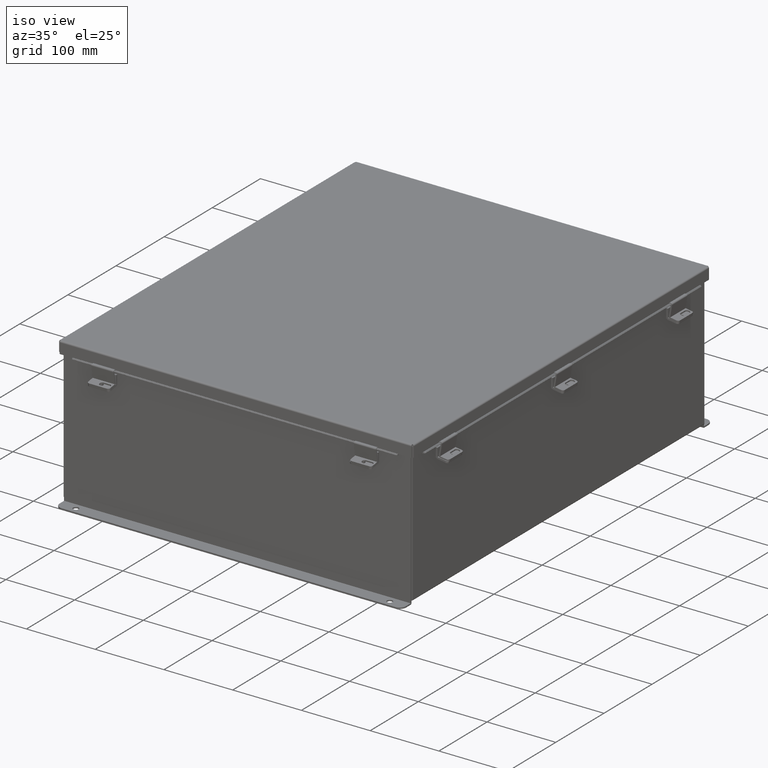
[diagram: clean part render]
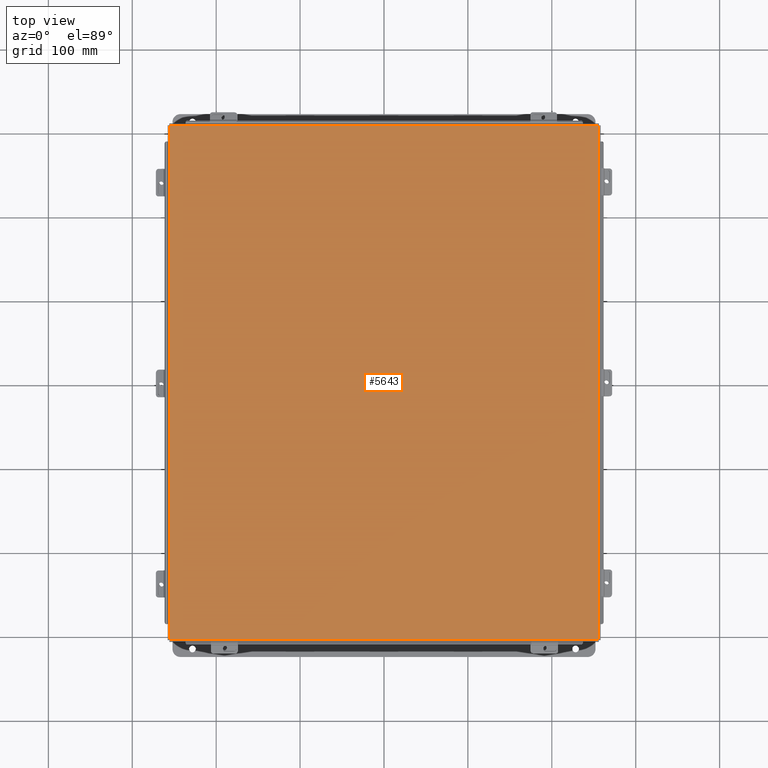
[diagram: tour spotlight — one face highlighted and labeled with its STEP entity id]
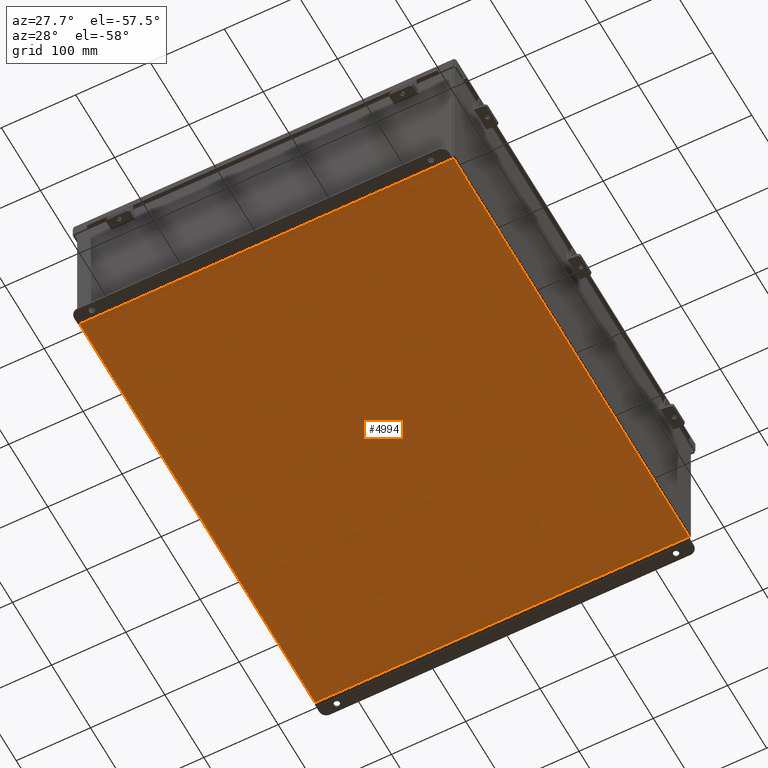
[diagram: tour spotlight — one face highlighted and labeled with its STEP entity id]
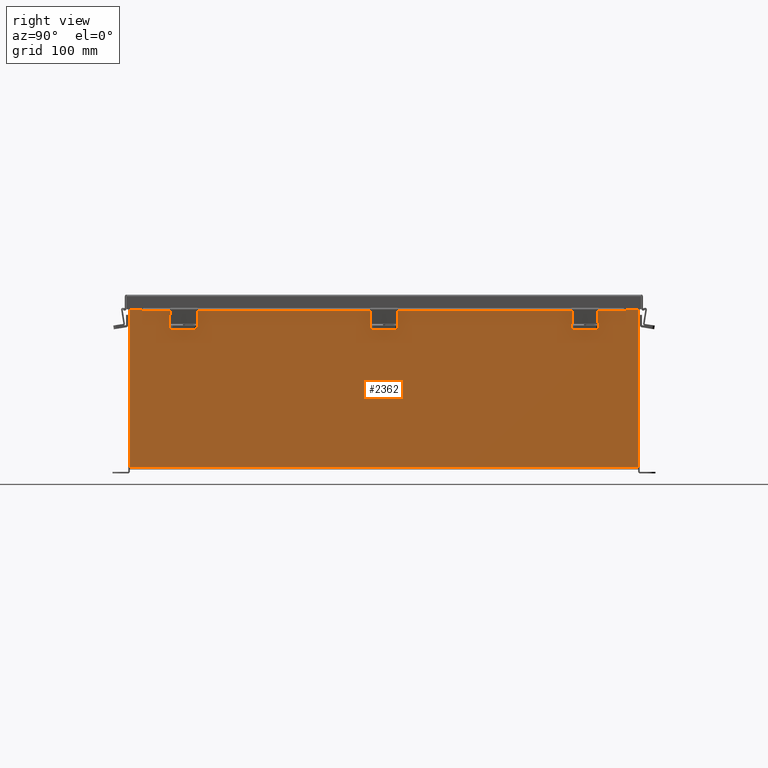
[diagram: tour spotlight — one face highlighted and labeled with its STEP entity id]
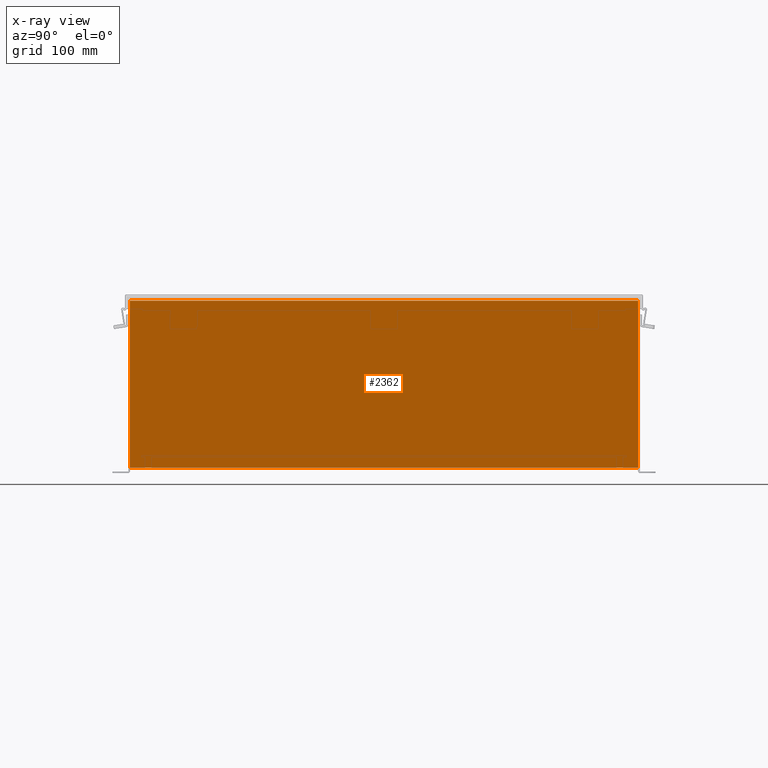
[diagram: x-ray of the same camera — body ghosted, this tour face saturated]
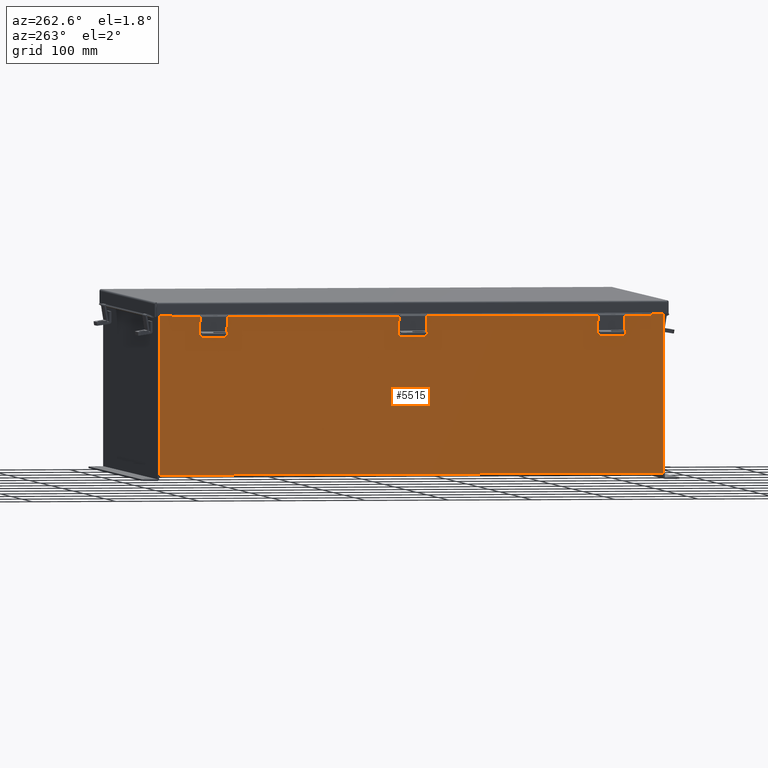
[diagram: tour spotlight — one face highlighted and labeled with its STEP entity id]
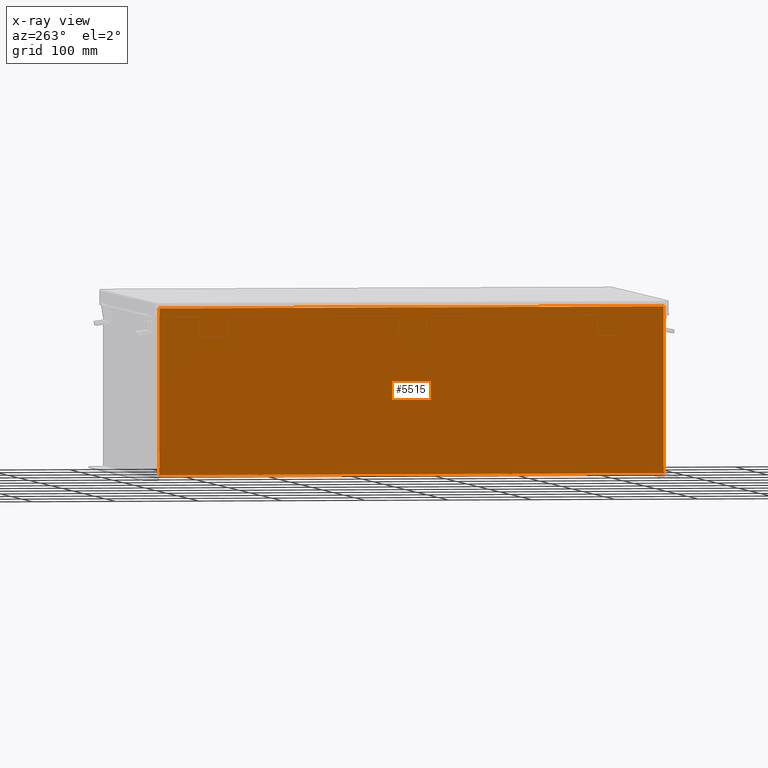
[diagram: x-ray of the same camera — body ghosted, this tour face saturated]
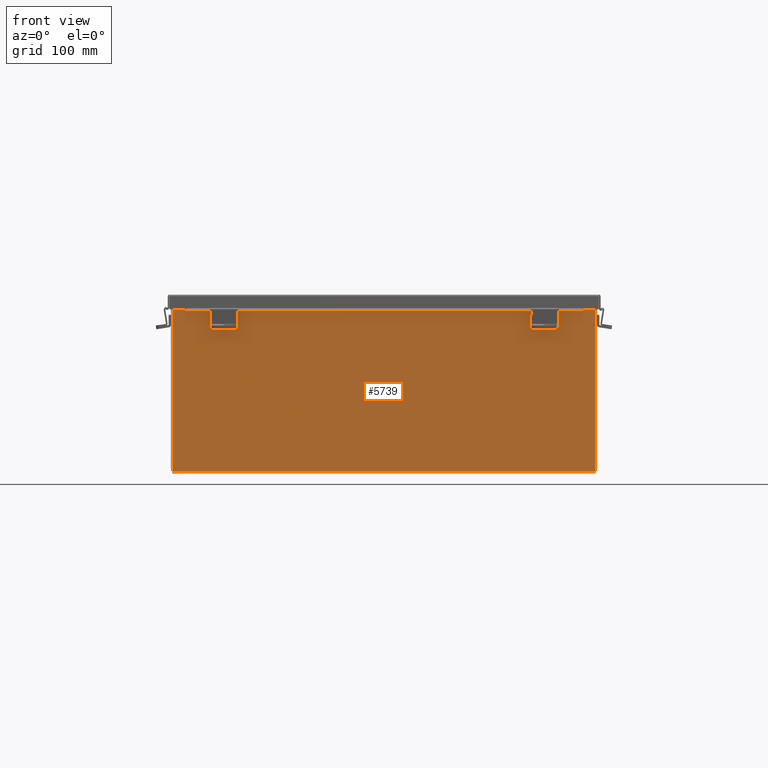
[diagram: tour spotlight — one face highlighted and labeled with its STEP entity id]
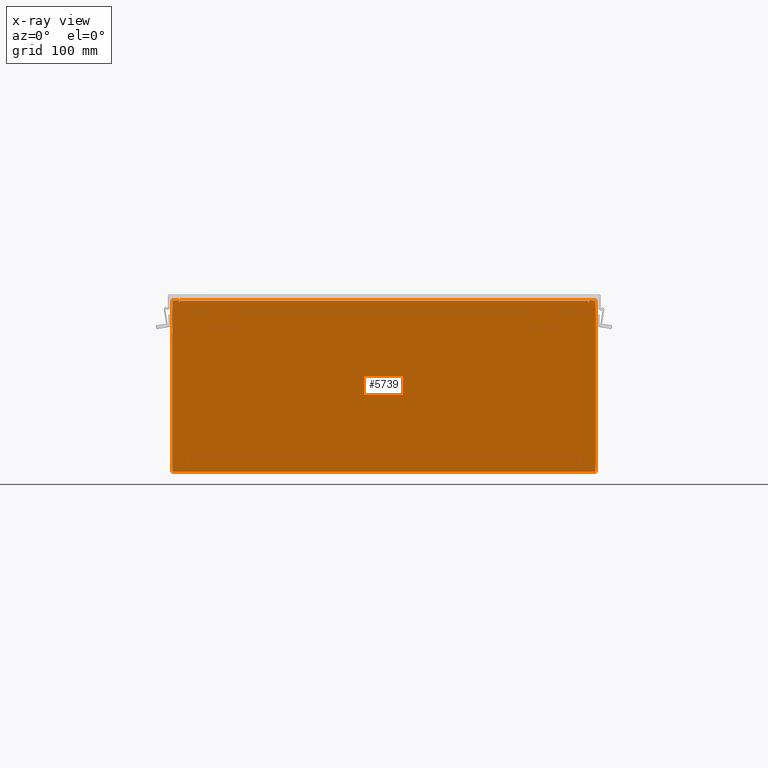
[diagram: x-ray of the same camera — body ghosted, this tour face saturated]
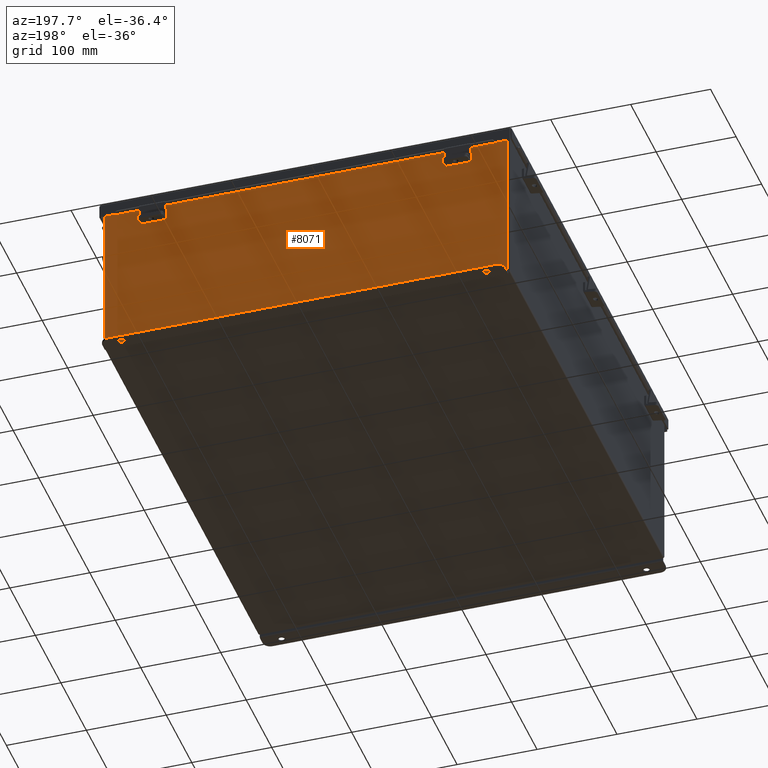
[diagram: tour spotlight — one face highlighted and labeled with its STEP entity id]
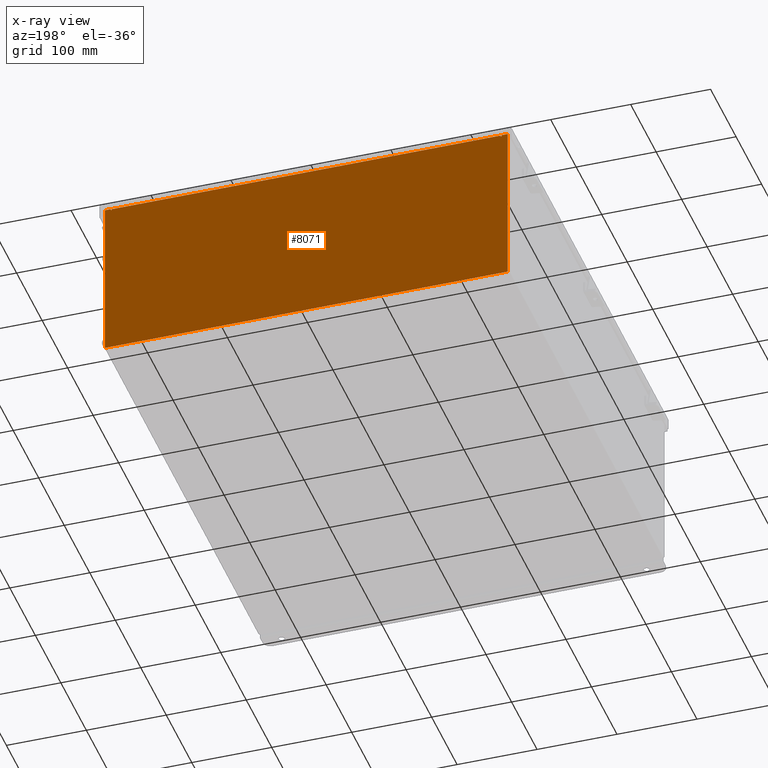
[diagram: x-ray of the same camera — body ghosted, this tour face saturated]
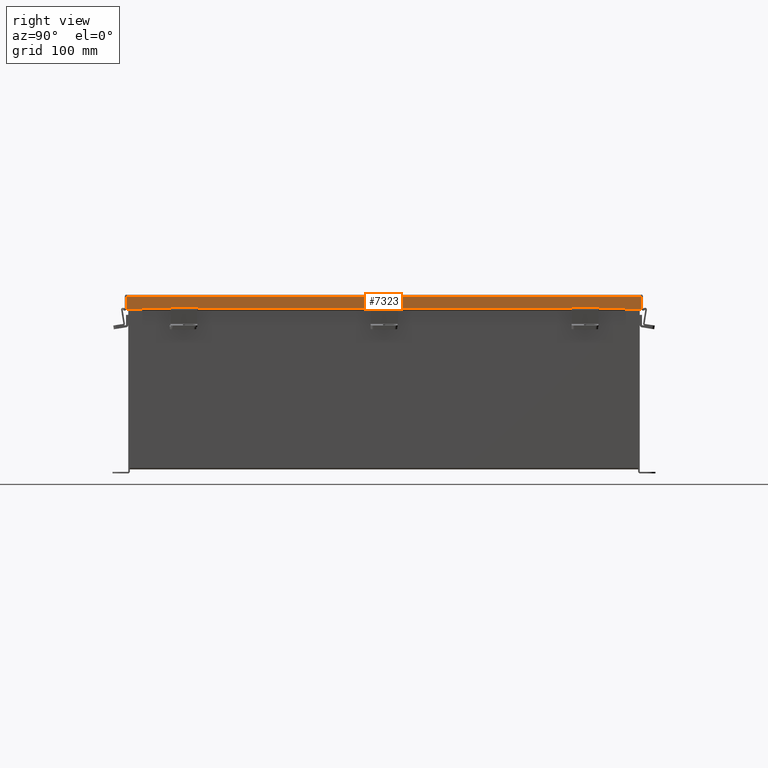
[diagram: tour spotlight — one face highlighted and labeled with its STEP entity id]
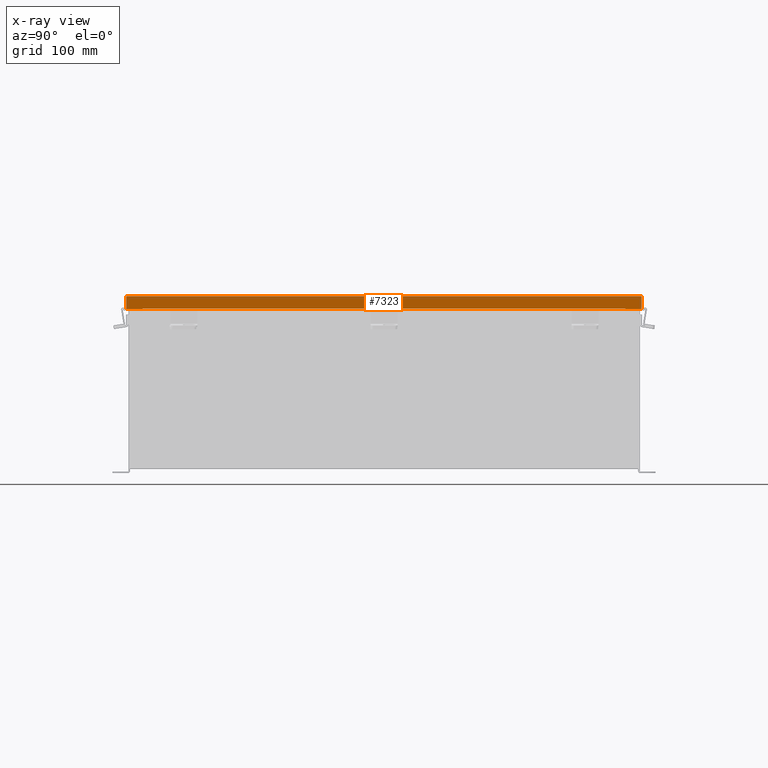
[diagram: x-ray of the same camera — body ghosted, this tour face saturated]
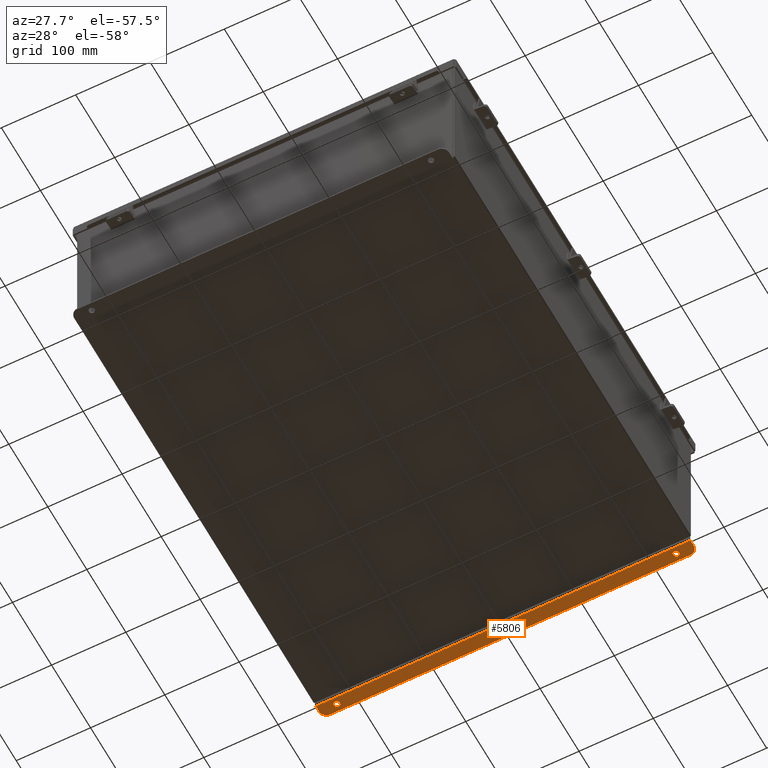
[diagram: tour spotlight — one face highlighted and labeled with its STEP entity id]
A machine part: a face-by-face anatomy tour. The part has 732 B-rep faces; the first image is the clean iso view, then the 8 largest visible faces are spotlighted one at a time (largest first), each with its STEP entity span.

Face 1 — top view, entity #5643. In plain terms, the highlighted planar face has unit normal (-0, -0, 1).
Definition (entity closure, byte-faithful):
#296 = CARTESIAN_POINT ( 'NONE',  ( -10.06855000000003200, 12.06855000000000000, -0.07470000000000015500 ) ) ;
#363 = LINE ( 'NONE', #7210, #4476 ) ;
#521 = ORIENTED_EDGE ( 'NONE', *, *, #8429, .T. ) ;
#1362 = VERTEX_POINT ( 'NONE', #296 ) ;
#1649 = ORIENTED_EDGE ( 'NONE', *, *, #1918, .T. ) ;
#1918 = EDGE_CURVE ( 'NONE', #6559, #6096, #3788, .T. ) ;
#1963 = DIRECTION ( 'NONE',  ( 1.000000000000000000, 3.215975411700707400E-030, -0.0000000000000000000 ) ) ;
#2174 = VECTOR ( 'NONE', #7280, 39.37007874015748100 ) ;
#2217 = EDGE_LOOP ( 'NONE', ( #6118, #5214, #1649, #521 ) ) ;
#2398 = PLANE ( 'NONE',  #3953 ) ;
#2649 = CARTESIAN_POINT ( 'NONE',  ( -10.06855000000003200, -12.07447893218813200, -0.07470000000000015500 ) ) ;
#3182 = DIRECTION ( 'NONE',  ( 5.938065620492508100E-059, -1.846427556282924300E-029, -1.000000000000000000 ) ) ;
#3444 = CARTESIAN_POINT ( 'NONE',  ( 10.06855000000003600, 12.06854999999999700, -0.07470000000000015500 ) ) ;
#3788 = LINE ( 'NONE', #5668, #9442 ) ;
#3953 = AXIS2_PLACEMENT_3D ( 'NONE', #7784, #3182, #8572 ) ;
#4295 = CARTESIAN_POINT ( 'NONE',  ( -10.07447893218816600, 12.06855000000000000, -0.07470000000000015500 ) ) ;
#4363 = EDGE_CURVE ( 'NONE', #6179, #6559, #363, .T. ) ;
#4476 = VECTOR ( 'NONE', #9670, 39.37007874015748100 ) ;
#4843 = CARTESIAN_POINT ( 'NONE',  ( -10.06855000000003200, -12.06855000000000000, -0.07470000000000015500 ) ) ;
#5214 = ORIENTED_EDGE ( 'NONE', *, *, #4363, .T. ) ;
#5643 = ADVANCED_FACE ( 'NONE', ( #6133 ), #2398, .T. ) ;
#5668 = CARTESIAN_POINT ( 'NONE',  ( 10.07447893218817100, -12.06854999999999700, -0.07469999999999797600 ) ) ;
#6022 = LINE ( 'NONE', #2649, #2174 ) ;
#6096 = VERTEX_POINT ( 'NONE', #4843 ) ;
#6118 = ORIENTED_EDGE ( 'NONE', *, *, #6793, .T. ) ;
#6133 = FACE_OUTER_BOUND ( 'NONE', #2217, .T. ) ;
#6179 = VERTEX_POINT ( 'NONE', #3444 ) ;
#6559 = VERTEX_POINT ( 'NONE', #7694 ) ;
#6793 = EDGE_CURVE ( 'NONE', #1362, #6179, #7138, .T. ) ;
#6898 = VECTOR ( 'NONE', #1963, 39.37007874015748100 ) ;
#7138 = LINE ( 'NONE', #4295, #6898 ) ;
#7210 = CARTESIAN_POINT ( 'NONE',  ( 10.06855000000003600, 12.07447893218813200, -0.07470000000000015500 ) ) ;
#7214 = DIRECTION ( 'NONE',  ( -1.000000000000000000, -3.208594708412919900E-030, -2.462603359672870600E-016 ) ) ;
#7280 = DIRECTION ( 'NONE',  ( 3.166671605124525800E-030, 1.000000000000000000, 1.853823127269377700E-029 ) ) ;
#7694 = CARTESIAN_POINT ( 'NONE',  ( 10.06855000000003600, -12.06854999999999700, -0.07469999999999797600 ) ) ;
#7784 = CARTESIAN_POINT ( 'NONE',  ( -8.537024980200822600E-018, 0.0000000000000000000, -0.07470000000000015500 ) ) ;
#8429 = EDGE_CURVE ( 'NONE', #6096, #1362, #6022, .T. ) ;
#8572 = DIRECTION ( 'NONE',  ( -1.000000000000000000, -3.215975411700707400E-030, 0.0000000000000000000 ) ) ;
#9442 = VECTOR ( 'NONE', #7214, 39.37007874015748100 ) ;
#9670 = DIRECTION ( 'NONE',  ( -3.166671605124525800E-030, -1.000000000000000000, -1.853823127269377700E-029 ) ) ;

Face 2 — auxiliary view, entity #4994. In plain terms, the highlighted planar face has unit normal (0, 0, -1).
Definition (entity closure, byte-faithful):
#15 = VERTEX_POINT ( 'NONE', #8042 ) ;
#450 = ORIENTED_EDGE ( 'NONE', *, *, #8259, .F. ) ;
#788 = VECTOR ( 'NONE', #5796, 39.37007874015748100 ) ;
#987 = VERTEX_POINT ( 'NONE', #4412 ) ;
#1338 = VECTOR ( 'NONE', #7037, 39.37007874015748100 ) ;
#1757 = AXIS2_PLACEMENT_3D ( 'NONE', #3075, #9236, #4628 ) ;
#1993 = DIRECTION ( 'NONE',  ( 1.000000000000000000, 0.0000000000000000000, 0.0000000000000000000 ) ) ;
#2241 = EDGE_CURVE ( 'NONE', #5529, #987, #3329, .T. ) ;
#2308 = CARTESIAN_POINT ( 'NONE',  ( 9.912300000000000100, 11.92529999999999300, -0.07469999999999994700 ) ) ;
#2716 = CARTESIAN_POINT ( 'NONE',  ( 9.912300000000000100, 11.92529999999999600, -0.07469999999999994700 ) ) ;
#3047 = ORIENTED_EDGE ( 'NONE', *, *, #4186, .F. ) ;
#3075 = CARTESIAN_POINT ( 'NONE',  ( 0.0000000000000000000, 0.0000000000000000000, -0.07470000000000000300 ) ) ;
#3329 = LINE ( 'NONE', #2716, #788 ) ;
#3357 = LINE ( 'NONE', #8741, #4931 ) ;
#3377 = LINE ( 'NONE', #7359, #4948 ) ;
#3503 = FACE_OUTER_BOUND ( 'NONE', #5559, .T. ) ;
#4186 = EDGE_CURVE ( 'NONE', #5529, #4625, #5417, .T. ) ;
#4412 = CARTESIAN_POINT ( 'NONE',  ( 9.912300000000000100, -11.92530000000000000, -0.07470000000000000300 ) ) ;
#4417 = ORIENTED_EDGE ( 'NONE', *, *, #2241, .T. ) ;
#4465 = PLANE ( 'NONE',  #1757 ) ;
#4625 = VERTEX_POINT ( 'NONE', #8462 ) ;
#4628 = DIRECTION ( 'NONE',  ( -1.000000000000000000, 0.0000000000000000000, -0.0000000000000000000 ) ) ;
#4931 = VECTOR ( 'NONE', #6446, 39.37007874015748100 ) ;
#4948 = VECTOR ( 'NONE', #1993, 39.37007874015748100 ) ;
#4994 = ADVANCED_FACE ( 'NONE', ( #3503 ), #4465, .T. ) ;
#5417 = LINE ( 'NONE', #9345, #1338 ) ;
#5529 = VERTEX_POINT ( 'NONE', #2308 ) ;
#5559 = EDGE_LOOP ( 'NONE', ( #3047, #4417, #450, #9801 ) ) ;
#5794 = EDGE_CURVE ( 'NONE', #15, #4625, #3357, .T. ) ;
#5796 = DIRECTION ( 'NONE',  ( -0.0000000000000000000, -1.000000000000000000, -0.0000000000000000000 ) ) ;
#6446 = DIRECTION ( 'NONE',  ( -0.0000000000000000000, 1.000000000000000000, -0.0000000000000000000 ) ) ;
#7037 = DIRECTION ( 'NONE',  ( -1.000000000000000000, -0.0000000000000000000, -0.0000000000000000000 ) ) ;
#7359 = CARTESIAN_POINT ( 'NONE',  ( -10.00000000000000000, -11.92530000000000000, -0.07470000000000000300 ) ) ;
#8042 = CARTESIAN_POINT ( 'NONE',  ( -9.912300000000000100, -11.92529999999999600, -0.07469999999999994700 ) ) ;
#8259 = EDGE_CURVE ( 'NONE', #15, #987, #3377, .T. ) ;
#8462 = CARTESIAN_POINT ( 'NONE',  ( -9.912300000000000100, 11.92529999999999600, -0.07470000000000000300 ) ) ;
#8741 = CARTESIAN_POINT ( 'NONE',  ( -9.912300000000000100, -11.92530000000000000, -0.07469999999999994700 ) ) ;
#9236 = DIRECTION ( 'NONE',  ( 0.0000000000000000000, 0.0000000000000000000, -1.000000000000000000 ) ) ;
#9345 = CARTESIAN_POINT ( 'NONE',  ( -10.00000000000000000, 11.92529999999999600, -0.07470000000000000300 ) ) ;
#9801 = ORIENTED_EDGE ( 'NONE', *, *, #5794, .T. ) ;

Face 3 — right view, entity #2362. An x-ray twin of the same camera follows (body ghosted, this face saturated) — the face is partly hidden behind the body. In plain terms, the highlighted planar face has unit normal (-1, 0, 0).
Definition (entity closure, byte-faithful):
#66 = FACE_OUTER_BOUND ( 'NONE', #4400, .T. ) ;
#180 = AXIS2_PLACEMENT_3D ( 'NONE', #9726, #5139, #501 ) ;
#355 = EDGE_CURVE ( 'NONE', #8005, #9562, #9852, .T. ) ;
#452 = DIRECTION ( 'NONE',  ( -0.0000000000000000000, -1.000000000000000000, -0.0000000000000000000 ) ) ;
#501 = DIRECTION ( 'NONE',  ( 3.618986973493534200E-015, 0.0000000000000000000, 1.000000000000000000 ) ) ;
#529 = LINE ( 'NONE', #6082, #4407 ) ;
#682 = DIRECTION ( 'NONE',  ( -0.0000000000000000000, -1.000000000000000000, -0.0000000000000000000 ) ) ;
#924 = ORIENTED_EDGE ( 'NONE', *, *, #8519, .F. ) ;
#1208 = VECTOR ( 'NONE', #452, 39.37007874015748100 ) ;
#1298 = VERTEX_POINT ( 'NONE', #5653 ) ;
#1436 = CARTESIAN_POINT ( 'NONE',  ( 10.00000000000000000, -11.92530000000000000, -3.645309666545751000E-014 ) ) ;
#1466 = EDGE_CURVE ( 'NONE', #9562, #6834, #529, .T. ) ;
#2224 = CARTESIAN_POINT ( 'NONE',  ( 10.00000000000002800, -11.92530000000000000, 7.837599999999999200 ) ) ;
#2249 = CARTESIAN_POINT ( 'NONE',  ( 10.00000000000000000, 11.92529999999999600, -3.313219394815939000E-014 ) ) ;
#2362 = ADVANCED_FACE ( 'NONE', ( #66 ), #9762, .F. ) ;
#3474 = ORIENTED_EDGE ( 'NONE', *, *, #1466, .T. ) ;
#3700 = VECTOR ( 'NONE', #5305, 39.37007874015748100 ) ;
#4028 = CARTESIAN_POINT ( 'NONE',  ( 10.00000000000000000, 11.92529999999999300, 0.01299999999999982600 ) ) ;
#4400 = EDGE_LOOP ( 'NONE', ( #3474, #8955, #924, #9856 ) ) ;
#4407 = VECTOR ( 'NONE', #682, 39.37007874015748100 ) ;
#5139 = DIRECTION ( 'NONE',  ( -1.000000000000000000, 0.0000000000000000000, 3.618986973493534200E-015 ) ) ;
#5262 = CARTESIAN_POINT ( 'NONE',  ( 10.00000000000002700, 11.92529999999998900, 7.837599999999999200 ) ) ;
#5305 = DIRECTION ( 'NONE',  ( 3.618986973493534200E-015, -2.783836133456565100E-016, 1.000000000000000000 ) ) ;
#5542 = LINE ( 'NONE', #1436, #6680 ) ;
#5653 = CARTESIAN_POINT ( 'NONE',  ( 10.00000000000000000, -11.92530000000000000, 0.01299999999999984300 ) ) ;
#6082 = CARTESIAN_POINT ( 'NONE',  ( 10.00000000000002700, 11.92529999999999300, 7.837599999999999200 ) ) ;
#6680 = VECTOR ( 'NONE', #9152, 39.37007874015748100 ) ;
#6834 = VERTEX_POINT ( 'NONE', #2224 ) ;
#7353 = LINE ( 'NONE', #9696, #1208 ) ;
#7826 = EDGE_CURVE ( 'NONE', #6834, #1298, #5542, .T. ) ;
#8005 = VERTEX_POINT ( 'NONE', #4028 ) ;
#8519 = EDGE_CURVE ( 'NONE', #8005, #1298, #7353, .T. ) ;
#8955 = ORIENTED_EDGE ( 'NONE', *, *, #7826, .T. ) ;
#9152 = DIRECTION ( 'NONE',  ( -3.618986973493534200E-015, 0.0000000000000000000, -1.000000000000000000 ) ) ;
#9562 = VERTEX_POINT ( 'NONE', #5262 ) ;
#9696 = CARTESIAN_POINT ( 'NONE',  ( 10.00000000000000000, -11.92530000000000000, 0.01299999999999982600 ) ) ;
#9726 = CARTESIAN_POINT ( 'NONE',  ( 10.00000000000000000, 0.0000000000000000000, -3.645309666545751000E-014 ) ) ;
#9762 = PLANE ( 'NONE',  #180 ) ;
#9852 = LINE ( 'NONE', #2249, #3700 ) ;
#9856 = ORIENTED_EDGE ( 'NONE', *, *, #355, .T. ) ;

Face 4 — auxiliary view, entity #5515. An x-ray twin of the same camera follows (body ghosted, this face saturated) — the face is partly hidden behind the body. In plain terms, the highlighted planar face has unit normal (1, 0, 0).
Definition (entity closure, byte-faithful):
#140 = EDGE_CURVE ( 'NONE', #5059, #9708, #3320, .T. ) ;
#375 = DIRECTION ( 'NONE',  ( -3.618986973493534200E-015, 2.783836133456565100E-016, 1.000000000000000000 ) ) ;
#445 = ORIENTED_EDGE ( 'NONE', *, *, #7347, .T. ) ;
#557 = DIRECTION ( 'NONE',  ( 3.618986973493534200E-015, 0.0000000000000000000, -1.000000000000000000 ) ) ;
#875 = VERTEX_POINT ( 'NONE', #1178 ) ;
#1178 = CARTESIAN_POINT ( 'NONE',  ( -10.00000000000000000, 11.92529999999999600, 0.01299999999999984300 ) ) ;
#1392 = VECTOR ( 'NONE', #375, 39.37007874015748100 ) ;
#1498 = PLANE ( 'NONE',  #9854 ) ;
#1727 = VECTOR ( 'NONE', #8012, 39.37007874015748100 ) ;
#1853 = CARTESIAN_POINT ( 'NONE',  ( -10.00000000000000000, 11.92529999999999600, 0.01299999999999982600 ) ) ;
#2277 = CARTESIAN_POINT ( 'NONE',  ( -10.00000000000000000, 0.0000000000000000000, -3.645309666545751000E-014 ) ) ;
#2365 = CARTESIAN_POINT ( 'NONE',  ( -10.00000000000003000, -11.92529999999999500, 7.837599999999999200 ) ) ;
#2820 = VECTOR ( 'NONE', #557, 39.37007874015748100 ) ;
#2926 = CARTESIAN_POINT ( 'NONE',  ( -10.00000000000002800, 11.92529999999999600, 7.837599999999999200 ) ) ;
#2974 = EDGE_CURVE ( 'NONE', #5538, #5059, #7536, .T. ) ;
#3053 = DIRECTION ( 'NONE',  ( 1.000000000000000000, 0.0000000000000000000, 3.618986973493534200E-015 ) ) ;
#3320 = LINE ( 'NONE', #6419, #7168 ) ;
#4522 = DIRECTION ( 'NONE',  ( 0.0000000000000000000, 1.000000000000000000, 0.0000000000000000000 ) ) ;
#5059 = VERTEX_POINT ( 'NONE', #2365 ) ;
#5515 = ADVANCED_FACE ( 'NONE', ( #5774 ), #1498, .F. ) ;
#5538 = VERTEX_POINT ( 'NONE', #7689 ) ;
#5774 = FACE_OUTER_BOUND ( 'NONE', #6359, .T. ) ;
#5835 = LINE ( 'NONE', #1853, #1727 ) ;
#6359 = EDGE_LOOP ( 'NONE', ( #9499, #445, #7898, #7849 ) ) ;
#6419 = CARTESIAN_POINT ( 'NONE',  ( -10.00000000000003000, -11.92529999999999600, 7.837599999999999200 ) ) ;
#6682 = EDGE_CURVE ( 'NONE', #5538, #875, #5835, .T. ) ;
#7168 = VECTOR ( 'NONE', #4522, 39.37007874015748100 ) ;
#7279 = CARTESIAN_POINT ( 'NONE',  ( -10.00000000000000000, -11.92530000000000000, -3.313219394815939000E-014 ) ) ;
#7347 = EDGE_CURVE ( 'NONE', #9708, #875, #8966, .T. ) ;
#7536 = LINE ( 'NONE', #7279, #1392 ) ;
#7689 = CARTESIAN_POINT ( 'NONE',  ( -10.00000000000000000, -11.92529999999999600, 0.01299999999999982600 ) ) ;
#7849 = ORIENTED_EDGE ( 'NONE', *, *, #2974, .T. ) ;
#7898 = ORIENTED_EDGE ( 'NONE', *, *, #6682, .F. ) ;
#8012 = DIRECTION ( 'NONE',  ( -0.0000000000000000000, 1.000000000000000000, -0.0000000000000000000 ) ) ;
#8447 = DIRECTION ( 'NONE',  ( 3.618986973493534200E-015, 0.0000000000000000000, -1.000000000000000000 ) ) ;
#8966 = LINE ( 'NONE', #9805, #2820 ) ;
#9499 = ORIENTED_EDGE ( 'NONE', *, *, #140, .T. ) ;
#9708 = VERTEX_POINT ( 'NONE', #2926 ) ;
#9805 = CARTESIAN_POINT ( 'NONE',  ( -10.00000000000000000, 11.92529999999999600, -3.645309666545751000E-014 ) ) ;
#9854 = AXIS2_PLACEMENT_3D ( 'NONE', #2277, #3053, #8447 ) ;

Face 5 — front view, entity #5739. An x-ray twin of the same camera follows (body ghosted, this face saturated) — the face is partly hidden behind the body. In plain terms, the highlighted planar face has unit normal (-0, 1, -0).
Definition (entity closure, byte-faithful):
#50 = VECTOR ( 'NONE', #2829, 39.37007874015748100 ) ;
#76 = CARTESIAN_POINT ( 'NONE',  ( -9.600974999999998300, -1.748382715945128500E-014, 3.874949999999997900 ) ) ;
#207 = VECTOR ( 'NONE', #6328, 39.37007874015748100 ) ;
#235 = CARTESIAN_POINT ( 'NONE',  ( 9.925300000000000000, 0.0000000000000000000, 3.925300000000000500 ) ) ;
#379 = VERTEX_POINT ( 'NONE', #9969 ) ;
#468 = LINE ( 'NONE', #5531, #207 ) ;
#627 = EDGE_CURVE ( 'NONE', #7740, #8381, #4044, .T. ) ;
#723 = CARTESIAN_POINT ( 'NONE',  ( -9.925299999999998200, -1.748382715945128500E-014, 3.925299999999999100 ) ) ;
#777 = ORIENTED_EDGE ( 'NONE', *, *, #3344, .T. ) ;
#844 = DIRECTION ( 'NONE',  ( 0.0000000000000000000, 0.0000000000000000000, -1.000000000000000000 ) ) ;
#928 = EDGE_CURVE ( 'NONE', #2144, #5791, #1880, .T. ) ;
#941 = PLANE ( 'NONE',  #7566 ) ;
#1094 = VERTEX_POINT ( 'NONE', #9505 ) ;
#1357 = VECTOR ( 'NONE', #4146, 39.37007874015748100 ) ;
#1563 = LINE ( 'NONE', #3907, #5409 ) ;
#1630 = VERTEX_POINT ( 'NONE', #6238 ) ;
#1645 = CARTESIAN_POINT ( 'NONE',  ( -9.619649999999998300, -1.748382715945128500E-014, 3.925300000000000500 ) ) ;
#1846 = LINE ( 'NONE', #7975, #1357 ) ;
#1880 = LINE ( 'NONE', #7427, #50 ) ;
#1991 = CARTESIAN_POINT ( 'NONE',  ( 9.925299999999998200, 1.748382715945128500E-014, -4.099299999999995100 ) ) ;
#2012 = DIRECTION ( 'NONE',  ( -4.340572780399863600E-014, 0.0000000000000000000, -1.000000000000000000 ) ) ;
#2144 = VERTEX_POINT ( 'NONE', #8023 ) ;
#2203 = ORIENTED_EDGE ( 'NONE', *, *, #4751, .F. ) ;
#2235 = VERTEX_POINT ( 'NONE', #8880 ) ;
#2240 = VECTOR ( 'NONE', #3392, 39.37007874015748100 ) ;
#2305 = EDGE_CURVE ( 'NONE', #2144, #2235, #8526, .T. ) ;
#2317 = DIRECTION ( 'NONE',  ( 0.0000000000000000000, 0.0000000000000000000, 1.000000000000000000 ) ) ;
#2443 = VECTOR ( 'NONE', #8789, 39.37007874015748100 ) ;
#2467 = AXIS2_PLACEMENT_3D ( 'NONE', #8587, #3960, #9354 ) ;
#2534 = DIRECTION ( 'NONE',  ( 0.0000000000000000000, 0.0000000000000000000, -1.000000000000000000 ) ) ;
#2622 = CARTESIAN_POINT ( 'NONE',  ( -9.582299999999998300, -1.311287036958846300E-014, 3.912299999999997900 ) ) ;
#2764 = ORIENTED_EDGE ( 'NONE', *, *, #4118, .F. ) ;
#2829 = DIRECTION ( 'NONE',  ( 1.000000000000000000, 4.910036603141682400E-031, 0.0000000000000000000 ) ) ;
#3344 = EDGE_CURVE ( 'NONE', #379, #8915, #7154, .T. ) ;
#3392 = DIRECTION ( 'NONE',  ( 0.0000000000000000000, 0.0000000000000000000, -1.000000000000000000 ) ) ;
#3539 = CARTESIAN_POINT ( 'NONE',  ( -9.582299999999998300, -1.311287036958846300E-014, 3.912299999999997900 ) ) ;
#3742 = LINE ( 'NONE', #5769, #7581 ) ;
#3833 = ORIENTED_EDGE ( 'NONE', *, *, #627, .F. ) ;
#3907 = CARTESIAN_POINT ( 'NONE',  ( 9.582300000000001800, 0.0000000000000000000, 0.0000000000000000000 ) ) ;
#3960 = DIRECTION ( 'NONE',  ( 4.910036603141682400E-031, 1.000000000000000000, -0.0000000000000000000 ) ) ;
#4044 = LINE ( 'NONE', #7217, #2240 ) ;
#4118 = EDGE_CURVE ( 'NONE', #8381, #1094, #5922, .T. ) ;
#4146 = DIRECTION ( 'NONE',  ( 0.0000000000000000000, 0.0000000000000000000, 1.000000000000000000 ) ) ;
#4286 = ORIENTED_EDGE ( 'NONE', *, *, #4696, .F. ) ;
#4399 = VERTEX_POINT ( 'NONE', #1991 ) ;
#4425 = VECTOR ( 'NONE', #2012, 39.37007874015748100 ) ;
#4470 = ORIENTED_EDGE ( 'NONE', *, *, #8450, .F. ) ;
#4674 = DIRECTION ( 'NONE',  ( 0.0000000000000000000, 0.0000000000000000000, 1.000000000000000000 ) ) ;
#4696 = EDGE_CURVE ( 'NONE', #5482, #1630, #1563, .T. ) ;
#4751 = EDGE_CURVE ( 'NONE', #2235, #5482, #5190, .T. ) ;
#4803 = CARTESIAN_POINT ( 'NONE',  ( -9.925299999999998200, -1.748382715945128500E-014, 3.925299999999999100 ) ) ;
#4851 = ORIENTED_EDGE ( 'NONE', *, *, #2305, .F. ) ;
#5001 = VECTOR ( 'NONE', #2317, 39.37007874015748100 ) ;
#5190 = CIRCLE ( 'NONE', #2467, 0.01867500000000003900 ) ;
#5223 = VERTEX_POINT ( 'NONE', #7916 ) ;
#5409 = VECTOR ( 'NONE', #4674, 39.37007874015748100 ) ;
#5418 = AXIS2_PLACEMENT_3D ( 'NONE', #76, #5456, #844 ) ;
#5456 = DIRECTION ( 'NONE',  ( 4.910036603141682400E-031, 1.000000000000000000, -0.0000000000000000000 ) ) ;
#5482 = VERTEX_POINT ( 'NONE', #9896 ) ;
#5531 = CARTESIAN_POINT ( 'NONE',  ( 9.925300000000000000, 0.0000000000000000000, 3.925300000000000500 ) ) ;
#5739 = ADVANCED_FACE ( 'NONE', ( #9515 ), #941, .F. ) ;
#5769 = CARTESIAN_POINT ( 'NONE',  ( -9.925299999999998200, -2.185478394931410600E-015, -4.099299999999999500 ) ) ;
#5791 = VERTEX_POINT ( 'NONE', #235 ) ;
#5922 = CIRCLE ( 'NONE', #5418, 0.01867500000000003900 ) ;
#6238 = CARTESIAN_POINT ( 'NONE',  ( 9.582300000000001800, 0.0000000000000000000, 3.912299999999997900 ) ) ;
#6328 = DIRECTION ( 'NONE',  ( -2.783836133456566600E-016, 0.0000000000000000000, -1.000000000000000000 ) ) ;
#6444 = CARTESIAN_POINT ( 'NONE',  ( -9.582299999999998300, -1.748382715945128500E-014, 3.874949999999999200 ) ) ;
#6515 = EDGE_CURVE ( 'NONE', #5223, #379, #7273, .T. ) ;
#6612 = CARTESIAN_POINT ( 'NONE',  ( 9.619649999999833100, 0.0000000000000000000, -4.136017862407694300E-013 ) ) ;
#6824 = ORIENTED_EDGE ( 'NONE', *, *, #7131, .T. ) ;
#7131 = EDGE_CURVE ( 'NONE', #7740, #1630, #8599, .T. ) ;
#7139 = DIRECTION ( 'NONE',  ( -4.910036603141682400E-031, -1.000000000000000000, -0.0000000000000000000 ) ) ;
#7154 = LINE ( 'NONE', #4803, #8743 ) ;
#7217 = CARTESIAN_POINT ( 'NONE',  ( -9.582299999999998300, 0.0000000000000000000, 4.370956789862821100E-015 ) ) ;
#7273 = LINE ( 'NONE', #723, #5001 ) ;
#7390 = ORIENTED_EDGE ( 'NONE', *, *, #6515, .T. ) ;
#7427 = CARTESIAN_POINT ( 'NONE',  ( -9.925299999999998200, -1.748382715945128500E-014, 3.925299999999999100 ) ) ;
#7566 = AXIS2_PLACEMENT_3D ( 'NONE', #9445, #7139, #2534 ) ;
#7580 = EDGE_CURVE ( 'NONE', #1094, #8915, #1846, .T. ) ;
#7581 = VECTOR ( 'NONE', #9633, 39.37007874015748100 ) ;
#7740 = VERTEX_POINT ( 'NONE', #3539 ) ;
#7916 = CARTESIAN_POINT ( 'NONE',  ( -9.925299999999996500, -2.185478394931410600E-015, -4.099299999999999500 ) ) ;
#7975 = CARTESIAN_POINT ( 'NONE',  ( -9.619649999999998300, 0.0000000000000000000, 0.0000000000000000000 ) ) ;
#8023 = CARTESIAN_POINT ( 'NONE',  ( 9.619650000000003600, 0.0000000000000000000, 3.925299999999999100 ) ) ;
#8381 = VERTEX_POINT ( 'NONE', #6444 ) ;
#8450 = EDGE_CURVE ( 'NONE', #5223, #4399, #3742, .T. ) ;
#8492 = ORIENTED_EDGE ( 'NONE', *, *, #928, .T. ) ;
#8526 = LINE ( 'NONE', #6612, #4425 ) ;
#8533 = EDGE_LOOP ( 'NONE', ( #8697, #2764, #3833, #6824, #4286, #2203, #4851, #8492, #9438, #4470, #7390, #777 ) ) ;
#8587 = CARTESIAN_POINT ( 'NONE',  ( 9.600975000000000000, 0.0000000000000000000, 3.874949999999997900 ) ) ;
#8599 = LINE ( 'NONE', #2622, #2443 ) ;
#8697 = ORIENTED_EDGE ( 'NONE', *, *, #7580, .F. ) ;
#8743 = VECTOR ( 'NONE', #9420, 39.37007874015748100 ) ;
#8789 = DIRECTION ( 'NONE',  ( 1.000000000000000000, 4.910036603141682400E-031, -0.0000000000000000000 ) ) ;
#8880 = CARTESIAN_POINT ( 'NONE',  ( 9.619650000000001800, 0.0000000000000000000, 3.874949999999997900 ) ) ;
#8915 = VERTEX_POINT ( 'NONE', #1645 ) ;
#9354 = DIRECTION ( 'NONE',  ( 0.0000000000000000000, 0.0000000000000000000, -1.000000000000000000 ) ) ;
#9420 = DIRECTION ( 'NONE',  ( 1.000000000000000000, 4.910036603141682400E-031, 0.0000000000000000000 ) ) ;
#9438 = ORIENTED_EDGE ( 'NONE', *, *, #9872, .T. ) ;
#9445 = CARTESIAN_POINT ( 'NONE',  ( 0.0000000000000000000, 0.0000000000000000000, 0.0000000000000000000 ) ) ;
#9505 = CARTESIAN_POINT ( 'NONE',  ( -9.619649999999996500, -1.748382715945128500E-014, 3.874949999999997900 ) ) ;
#9515 = FACE_OUTER_BOUND ( 'NONE', #8533, .T. ) ;
#9633 = DIRECTION ( 'NONE',  ( 1.000000000000000000, 8.208677865577687000E-017, -0.0000000000000000000 ) ) ;
#9872 = EDGE_CURVE ( 'NONE', #5791, #4399, #468, .T. ) ;
#9896 = CARTESIAN_POINT ( 'NONE',  ( 9.582300000000000000, 0.0000000000000000000, 3.874949999999999200 ) ) ;
#9969 = CARTESIAN_POINT ( 'NONE',  ( -9.925299999999998200, -1.748382715945128500E-014, 3.925299999999999100 ) ) ;

Face 6 — auxiliary view, entity #8071. An x-ray twin of the same camera follows (body ghosted, this face saturated) — the face is partly hidden behind the body. In plain terms, the highlighted planar face has unit normal (0, -1, 0).
Definition (entity closure, byte-faithful):
#240 = CARTESIAN_POINT ( 'NONE',  ( 0.0000000000000000000, 0.0000000000000000000, 0.0000000000000000000 ) ) ;
#314 = DIRECTION ( 'NONE',  ( -4.340572780399863600E-014, 0.0000000000000000000, -1.000000000000000000 ) ) ;
#391 = VERTEX_POINT ( 'NONE', #2315 ) ;
#451 = DIRECTION ( 'NONE',  ( -0.0000000000000000000, -0.0000000000000000000, 1.000000000000000000 ) ) ;
#461 = CARTESIAN_POINT ( 'NONE',  ( -9.619650000000003600, 0.0000000000000000000, 3.925299999999999600 ) ) ;
#712 = ORIENTED_EDGE ( 'NONE', *, *, #9384, .F. ) ;
#1017 = DIRECTION ( 'NONE',  ( 0.0000000000000000000, -0.0000000000000000000, -1.000000000000000000 ) ) ;
#1033 = ORIENTED_EDGE ( 'NONE', *, *, #3838, .F. ) ;
#1199 = VECTOR ( 'NONE', #7308, 39.37007874015748100 ) ;
#1226 = CARTESIAN_POINT ( 'NONE',  ( -9.619650000000003600, 0.0000000000000000000, 0.0000000000000000000 ) ) ;
#1252 = VECTOR ( 'NONE', #314, 39.37007874015748100 ) ;
#1263 = VECTOR ( 'NONE', #4343, 39.37007874015748100 ) ;
#1379 = EDGE_CURVE ( 'NONE', #391, #7700, #8984, .T. ) ;
#1452 = LINE ( 'NONE', #6877, #3752 ) ;
#1536 = DIRECTION ( 'NONE',  ( 1.000000000000000000, 8.208677865577646300E-017, -0.0000000000000000000 ) ) ;
#1580 = EDGE_CURVE ( 'NONE', #2268, #2338, #9836, .T. ) ;
#1907 = CARTESIAN_POINT ( 'NONE',  ( -9.600975000000003600, 0.0000000000000000000, 3.874949999999997500 ) ) ;
#1930 = EDGE_CURVE ( 'NONE', #2268, #5312, #5342, .T. ) ;
#1978 = EDGE_LOOP ( 'NONE', ( #1033, #3160, #4736, #5694, #712, #7729, #9109, #5159, #6532, #2633, #7554, #6458 ) ) ;
#2041 = CARTESIAN_POINT ( 'NONE',  ( 9.925299999999998200, 0.0000000000000000000, 3.925299999999999600 ) ) ;
#2158 = VECTOR ( 'NONE', #7446, 39.37007874015748100 ) ;
#2206 = VERTEX_POINT ( 'NONE', #4998 ) ;
#2268 = VERTEX_POINT ( 'NONE', #8913 ) ;
#2315 = CARTESIAN_POINT ( 'NONE',  ( -9.582300000000003600, 0.0000000000000000000, 3.874949999999997500 ) ) ;
#2338 = VERTEX_POINT ( 'NONE', #2041 ) ;
#2352 = AXIS2_PLACEMENT_3D ( 'NONE', #3771, #9154, #4552 ) ;
#2393 = LINE ( 'NONE', #5899, #2158 ) ;
#2493 = VERTEX_POINT ( 'NONE', #6020 ) ;
#2633 = ORIENTED_EDGE ( 'NONE', *, *, #6507, .F. ) ;
#2673 = DIRECTION ( 'NONE',  ( 0.0000000000000000000, 0.0000000000000000000, -1.000000000000000000 ) ) ;
#2713 = CARTESIAN_POINT ( 'NONE',  ( -9.925300000000001800, 0.0000000000000000000, 3.925299999999999600 ) ) ;
#2968 = VECTOR ( 'NONE', #451, 39.37007874015748100 ) ;
#3024 = EDGE_CURVE ( 'NONE', #4444, #8549, #5022, .T. ) ;
#3160 = ORIENTED_EDGE ( 'NONE', *, *, #1379, .F. ) ;
#3752 = VECTOR ( 'NONE', #9971, 39.37007874015748100 ) ;
#3771 = CARTESIAN_POINT ( 'NONE',  ( 9.600974999999996500, 0.0000000000000000000, 3.874949999999997500 ) ) ;
#3838 = EDGE_CURVE ( 'NONE', #7700, #5275, #9452, .T. ) ;
#3908 = EDGE_CURVE ( 'NONE', #2493, #5378, #4869, .T. ) ;
#4308 = DIRECTION ( 'NONE',  ( 0.0000000000000000000, 0.0000000000000000000, 1.000000000000000000 ) ) ;
#4343 = DIRECTION ( 'NONE',  ( 0.0000000000000000000, 0.0000000000000000000, 1.000000000000000000 ) ) ;
#4444 = VERTEX_POINT ( 'NONE', #5847 ) ;
#4552 = DIRECTION ( 'NONE',  ( 0.0000000000000000000, 0.0000000000000000000, -1.000000000000000000 ) ) ;
#4633 = AXIS2_PLACEMENT_3D ( 'NONE', #240, #5633, #1017 ) ;
#4736 = ORIENTED_EDGE ( 'NONE', *, *, #7895, .F. ) ;
#4869 = LINE ( 'NONE', #5902, #8733 ) ;
#4998 = CARTESIAN_POINT ( 'NONE',  ( 9.582299999999996500, 0.0000000000000000000, 3.874949999999997500 ) ) ;
#5022 = LINE ( 'NONE', #5046, #2968 ) ;
#5046 = CARTESIAN_POINT ( 'NONE',  ( -9.925300000000001800, 0.0000000000000000000, 3.925299999999999600 ) ) ;
#5159 = ORIENTED_EDGE ( 'NONE', *, *, #1580, .T. ) ;
#5275 = VERTEX_POINT ( 'NONE', #461 ) ;
#5312 = VERTEX_POINT ( 'NONE', #8993 ) ;
#5342 = LINE ( 'NONE', #8007, #1252 ) ;
#5378 = VERTEX_POINT ( 'NONE', #8283 ) ;
#5391 = CARTESIAN_POINT ( 'NONE',  ( -9.925300000000001800, 0.0000000000000000000, 3.925299999999999600 ) ) ;
#5453 = VECTOR ( 'NONE', #1536, 39.37007874015748100 ) ;
#5633 = DIRECTION ( 'NONE',  ( 0.0000000000000000000, -1.000000000000000000, 0.0000000000000000000 ) ) ;
#5694 = ORIENTED_EDGE ( 'NONE', *, *, #3908, .T. ) ;
#5710 = VECTOR ( 'NONE', #9272, 39.37007874015748100 ) ;
#5847 = CARTESIAN_POINT ( 'NONE',  ( -9.925300000000000000, -2.185478394931410600E-015, -4.099300000000000400 ) ) ;
#5899 = CARTESIAN_POINT ( 'NONE',  ( 9.925299999999998200, 0.0000000000000000000, 3.925299999999999600 ) ) ;
#5902 = CARTESIAN_POINT ( 'NONE',  ( -9.582300000000003600, 4.370956789862821100E-015, 3.912299999999998800 ) ) ;
#6020 = CARTESIAN_POINT ( 'NONE',  ( -9.582300000000003600, 4.370956789862821100E-015, 3.912299999999998800 ) ) ;
#6155 = CARTESIAN_POINT ( 'NONE',  ( -9.925300000000001800, -2.185478394931410600E-015, -4.099300000000000400 ) ) ;
#6426 = EDGE_CURVE ( 'NONE', #5312, #2206, #9837, .T. ) ;
#6458 = ORIENTED_EDGE ( 'NONE', *, *, #9078, .T. ) ;
#6507 = EDGE_CURVE ( 'NONE', #4444, #9502, #9095, .T. ) ;
#6532 = ORIENTED_EDGE ( 'NONE', *, *, #9470, .T. ) ;
#6576 = CARTESIAN_POINT ( 'NONE',  ( -9.619650000000003600, 0.0000000000000000000, 3.874949999999997500 ) ) ;
#6707 = CARTESIAN_POINT ( 'NONE',  ( 9.925299999999998200, 0.0000000000000000000, -4.099300000000000400 ) ) ;
#6731 = LINE ( 'NONE', #9694, #6958 ) ;
#6877 = CARTESIAN_POINT ( 'NONE',  ( -9.582300000000003600, 0.0000000000000000000, 0.0000000000000000000 ) ) ;
#6958 = VECTOR ( 'NONE', #4308, 39.37007874015748100 ) ;
#7075 = LINE ( 'NONE', #2713, #1199 ) ;
#7144 = PLANE ( 'NONE',  #4633 ) ;
#7150 = AXIS2_PLACEMENT_3D ( 'NONE', #1907, #7270, #2673 ) ;
#7270 = DIRECTION ( 'NONE',  ( -0.0000000000000000000, 1.000000000000000000, -0.0000000000000000000 ) ) ;
#7308 = DIRECTION ( 'NONE',  ( 1.000000000000000000, 0.0000000000000000000, 0.0000000000000000000 ) ) ;
#7386 = CARTESIAN_POINT ( 'NONE',  ( -9.925300000000001800, 0.0000000000000000000, 3.925299999999999600 ) ) ;
#7446 = DIRECTION ( 'NONE',  ( 0.0000000000000000000, 0.0000000000000000000, -1.000000000000000000 ) ) ;
#7448 = DIRECTION ( 'NONE',  ( 1.000000000000000000, 0.0000000000000000000, 0.0000000000000000000 ) ) ;
#7554 = ORIENTED_EDGE ( 'NONE', *, *, #3024, .T. ) ;
#7700 = VERTEX_POINT ( 'NONE', #6576 ) ;
#7729 = ORIENTED_EDGE ( 'NONE', *, *, #6426, .F. ) ;
#7895 = EDGE_CURVE ( 'NONE', #2493, #391, #1452, .T. ) ;
#7960 = FACE_OUTER_BOUND ( 'NONE', #1978, .T. ) ;
#8007 = CARTESIAN_POINT ( 'NONE',  ( 9.619649999999829500, 0.0000000000000000000, -4.174263734318994100E-013 ) ) ;
#8071 = ADVANCED_FACE ( 'NONE', ( #7960 ), #7144, .F. ) ;
#8283 = CARTESIAN_POINT ( 'NONE',  ( 9.582299999999996500, 0.0000000000000000000, 3.912299999999998800 ) ) ;
#8549 = VERTEX_POINT ( 'NONE', #7386 ) ;
#8733 = VECTOR ( 'NONE', #7448, 39.37007874015748100 ) ;
#8913 = CARTESIAN_POINT ( 'NONE',  ( 9.619649999999998300, 0.0000000000000000000, 3.925299999999999600 ) ) ;
#8984 = CIRCLE ( 'NONE', #7150, 0.01867500000000003900 ) ;
#8993 = CARTESIAN_POINT ( 'NONE',  ( 9.619649999999996500, 0.0000000000000000000, 3.874949999999997500 ) ) ;
#9078 = EDGE_CURVE ( 'NONE', #8549, #5275, #7075, .T. ) ;
#9095 = LINE ( 'NONE', #6155, #5453 ) ;
#9109 = ORIENTED_EDGE ( 'NONE', *, *, #1930, .F. ) ;
#9154 = DIRECTION ( 'NONE',  ( -0.0000000000000000000, 1.000000000000000000, -0.0000000000000000000 ) ) ;
#9272 = DIRECTION ( 'NONE',  ( 1.000000000000000000, 0.0000000000000000000, 0.0000000000000000000 ) ) ;
#9384 = EDGE_CURVE ( 'NONE', #2206, #5378, #6731, .T. ) ;
#9452 = LINE ( 'NONE', #1226, #1263 ) ;
#9470 = EDGE_CURVE ( 'NONE', #2338, #9502, #2393, .T. ) ;
#9502 = VERTEX_POINT ( 'NONE', #6707 ) ;
#9694 = CARTESIAN_POINT ( 'NONE',  ( 9.582299999999996500, 0.0000000000000000000, 0.0000000000000000000 ) ) ;
#9836 = LINE ( 'NONE', #5391, #5710 ) ;
#9837 = CIRCLE ( 'NONE', #2352, 0.01867500000000003900 ) ;
#9971 = DIRECTION ( 'NONE',  ( 0.0000000000000000000, 0.0000000000000000000, -1.000000000000000000 ) ) ;

Face 7 — right view, entity #7323. An x-ray twin of the same camera follows (body ghosted, this face saturated) — the face is partly hidden behind the body. In plain terms, the highlighted planar face has unit normal (-1, 0, -0).
Definition (entity closure, byte-faithful):
#237 = EDGE_CURVE ( 'NONE', #5787, #2570, #4420, .T. ) ;
#300 = VECTOR ( 'NONE', #8306, 39.37007874015748100 ) ;
#538 = LINE ( 'NONE', #6570, #8510 ) ;
#802 = VERTEX_POINT ( 'NONE', #2061 ) ;
#823 = LINE ( 'NONE', #4652, #8557 ) ;
#876 = EDGE_CURVE ( 'NONE', #5353, #5889, #538, .T. ) ;
#1049 = EDGE_CURVE ( 'NONE', #7397, #5889, #5250, .T. ) ;
#1300 = ORIENTED_EDGE ( 'NONE', *, *, #8861, .F. ) ;
#1741 = DIRECTION ( 'NONE',  ( 0.0000000000000000000, -7.009925220120292200E-013, 1.000000000000000000 ) ) ;
#1942 = LINE ( 'NONE', #4594, #9657 ) ;
#2061 = CARTESIAN_POINT ( 'NONE',  ( -10.15625000000003200, 12.07447893218813200, 0.01299999999999901400 ) ) ;
#2078 = CARTESIAN_POINT ( 'NONE',  ( -10.15625000000003200, -12.07447893218813200, 0.01300000000000775700 ) ) ;
#2269 = DIRECTION ( 'NONE',  ( -3.166671605124527300E-030, -1.000000000000000000, -1.853823127269378000E-029 ) ) ;
#2570 = VERTEX_POINT ( 'NONE', #7634 ) ;
#2629 = CARTESIAN_POINT ( 'NONE',  ( -10.15625000000003200, 12.15625000000000000, 0.01299999999999901400 ) ) ;
#2823 = CARTESIAN_POINT ( 'NONE',  ( -10.15625000000003200, 12.07447893218813400, 0.6122999999999994000 ) ) ;
#2868 = EDGE_LOOP ( 'NONE', ( #4724, #8404, #1300, #4355, #3569, #4762, #6709, #3985 ) ) ;
#2916 = CARTESIAN_POINT ( 'NONE',  ( -10.15625000000003600, 11.32447893218813400, 0.6122999999999982900 ) ) ;
#3129 = DIRECTION ( 'NONE',  ( -3.569293475308537100E-015, 1.846427556282924300E-029, 1.000000000000000000 ) ) ;
#3279 = FACE_OUTER_BOUND ( 'NONE', #2868, .T. ) ;
#3321 = AXIS2_PLACEMENT_3D ( 'NONE', #7429, #4380, #9778 ) ;
#3477 = EDGE_CURVE ( 'NONE', #8581, #802, #8267, .T. ) ;
#3569 = ORIENTED_EDGE ( 'NONE', *, *, #4393, .T. ) ;
#3852 = VECTOR ( 'NONE', #4894, 39.37007874015748100 ) ;
#3985 = ORIENTED_EDGE ( 'NONE', *, *, #4957, .F. ) ;
#4126 = CARTESIAN_POINT ( 'NONE',  ( -10.15625000000003400, -4.268512490100411300E-018, 0.6123000000000005100 ) ) ;
#4184 = DIRECTION ( 'NONE',  ( 3.166671605124525800E-030, 1.000000000000000000, 1.853823127269377700E-029 ) ) ;
#4355 = ORIENTED_EDGE ( 'NONE', *, *, #3477, .F. ) ;
#4380 = DIRECTION ( 'NONE',  ( 1.000000000000000000, 3.392644796219358600E-030, 3.569293475308537100E-015 ) ) ;
#4393 = EDGE_CURVE ( 'NONE', #8581, #5353, #6270, .T. ) ;
#4420 = LINE ( 'NONE', #2916, #300 ) ;
#4441 = CARTESIAN_POINT ( 'NONE',  ( -10.15625000000003200, -11.32447893218812100, 0.5967115427318858700 ) ) ;
#4594 = CARTESIAN_POINT ( 'NONE',  ( -10.15625000000003200, 11.32447893218812900, 0.5967115427318782100 ) ) ;
#4652 = CARTESIAN_POINT ( 'NONE',  ( -10.15625000000003200, 12.07447893218813400, -1.092739197465705300E-015 ) ) ;
#4724 = ORIENTED_EDGE ( 'NONE', *, *, #237, .F. ) ;
#4762 = ORIENTED_EDGE ( 'NONE', *, *, #876, .T. ) ;
#4894 = DIRECTION ( 'NONE',  ( 3.166671605124525800E-030, 1.000000000000000000, 1.853823127269377700E-029 ) ) ;
#4957 = EDGE_CURVE ( 'NONE', #2570, #7397, #1942, .T. ) ;
#5250 = LINE ( 'NONE', #6356, #9594 ) ;
#5353 = VERTEX_POINT ( 'NONE', #7463 ) ;
#5681 = LINE ( 'NONE', #4126, #3852 ) ;
#5787 = VERTEX_POINT ( 'NONE', #7172 ) ;
#5816 = DIRECTION ( 'NONE',  ( 3.166671605124525800E-030, 1.000000000000000000, 1.853823127269377700E-029 ) ) ;
#5882 = VERTEX_POINT ( 'NONE', #2823 ) ;
#5889 = VERTEX_POINT ( 'NONE', #8214 ) ;
#5969 = VECTOR ( 'NONE', #4184, 39.37007874015748100 ) ;
#6270 = LINE ( 'NONE', #8926, #9900 ) ;
#6356 = CARTESIAN_POINT ( 'NONE',  ( -10.15625000000003200, -11.32447893218812100, 0.5967115427318858700 ) ) ;
#6570 = CARTESIAN_POINT ( 'NONE',  ( -10.15625000000003400, -4.268512490100411300E-018, 0.6123000000000005100 ) ) ;
#6709 = ORIENTED_EDGE ( 'NONE', *, *, #1049, .F. ) ;
#7172 = CARTESIAN_POINT ( 'NONE',  ( -10.15625000000003200, 11.32447893218813400, 0.6122999999999994000 ) ) ;
#7323 = ADVANCED_FACE ( 'NONE', ( #3279 ), #8991, .F. ) ;
#7397 = VERTEX_POINT ( 'NONE', #4441 ) ;
#7429 = CARTESIAN_POINT ( 'NONE',  ( -10.15625000000003000, 0.0000000000000000000, -3.606039351636827200E-014 ) ) ;
#7463 = CARTESIAN_POINT ( 'NONE',  ( -10.15625000000003200, -12.07447893218813200, 0.6123000000000080600 ) ) ;
#7634 = CARTESIAN_POINT ( 'NONE',  ( -10.15625000000003200, 11.32447893218813400, 0.5967115427318782100 ) ) ;
#8214 = CARTESIAN_POINT ( 'NONE',  ( -10.15625000000003200, -11.32447893218813400, 0.6123000000000080600 ) ) ;
#8267 = LINE ( 'NONE', #2629, #5969 ) ;
#8306 = DIRECTION ( 'NONE',  ( 1.401985044024124300E-013, -1.853823127269371600E-029, -1.000000000000000000 ) ) ;
#8404 = ORIENTED_EDGE ( 'NONE', *, *, #9221, .T. ) ;
#8510 = VECTOR ( 'NONE', #5816, 39.37007874015748100 ) ;
#8557 = VECTOR ( 'NONE', #3129, 39.37007874015748100 ) ;
#8581 = VERTEX_POINT ( 'NONE', #2078 ) ;
#8861 = EDGE_CURVE ( 'NONE', #802, #5882, #823, .T. ) ;
#8926 = CARTESIAN_POINT ( 'NONE',  ( -10.15625000000003200, -12.07447893218813200, -2.841121913410833900E-014 ) ) ;
#8991 = PLANE ( 'NONE',  #3321 ) ;
#9221 = EDGE_CURVE ( 'NONE', #5787, #5882, #5681, .T. ) ;
#9594 = VECTOR ( 'NONE', #1741, 39.37007874015748100 ) ;
#9657 = VECTOR ( 'NONE', #2269, 39.37007874015748100 ) ;
#9706 = DIRECTION ( 'NONE',  ( -3.569293475308537100E-015, 1.846427556282924300E-029, 1.000000000000000000 ) ) ;
#9778 = DIRECTION ( 'NONE',  ( 3.569293475308537100E-015, -1.846427556282924000E-029, -1.000000000000000000 ) ) ;
#9900 = VECTOR ( 'NONE', #9706, 39.37007874015748100 ) ;

Face 8 — auxiliary view, entity #5806. In plain terms, the highlighted planar face has unit normal (0, 0, 1).
Definition (entity closure, byte-faithful):
#10 = CARTESIAN_POINT ( 'NONE',  ( 9.925299999999998200, 0.01300000000000010700, -4.187000000000001200 ) ) ;
#97 = EDGE_CURVE ( 'NONE', #6204, #6441, #3585, .T. ) ;
#113 = VERTEX_POINT ( 'NONE', #2540 ) ;
#272 = PLANE ( 'NONE',  #1193 ) ;
#326 = VERTEX_POINT ( 'NONE', #595 ) ;
#362 = CARTESIAN_POINT ( 'NONE',  ( -8.987800000000000000, 0.3628000000000008400, -4.187000000000002100 ) ) ;
#488 = ORIENTED_EDGE ( 'NONE', *, *, #7963, .F. ) ;
#595 = CARTESIAN_POINT ( 'NONE',  ( 9.925299999999998200, 0.01300000000000010700, -4.187000000000001200 ) ) ;
#596 = AXIS2_PLACEMENT_3D ( 'NONE', #7934, #3312, #8707 ) ;
#814 = FACE_BOUND ( 'NONE', #4845, .T. ) ;
#837 = CIRCLE ( 'NONE', #596, 0.3750000000000000600 ) ;
#888 = VECTOR ( 'NONE', #1337, 39.37007874015748100 ) ;
#915 = CARTESIAN_POINT ( 'NONE',  ( 0.0000000000000000000, 0.7377999999999989000, -4.187000000000003800 ) ) ;
#984 = DIRECTION ( 'NONE',  ( 0.0000000000000000000, -3.702694488566362300E-015, -1.000000000000000000 ) ) ;
#1090 = VECTOR ( 'NONE', #7816, 39.37007874015748100 ) ;
#1095 = AXIS2_PLACEMENT_3D ( 'NONE', #6330, #1705, #7079 ) ;
#1118 = CARTESIAN_POINT ( 'NONE',  ( 9.550299999999998200, 0.7377999999999989000, -4.187000000000003800 ) ) ;
#1152 = DIRECTION ( 'NONE',  ( 0.0000000000000000000, 1.000000000000000000, -3.502369222646487000E-015 ) ) ;
#1153 = ORIENTED_EDGE ( 'NONE', *, *, #6641, .F. ) ;
#1175 = DIRECTION ( 'NONE',  ( 0.0000000000000000000, -3.702694488566362300E-015, -1.000000000000000000 ) ) ;
#1193 = AXIS2_PLACEMENT_3D ( 'NONE', #8003, #9557, #4937 ) ;
#1337 = DIRECTION ( 'NONE',  ( 0.0000000000000000000, 1.000000000000000000, -3.702694488566362300E-015 ) ) ;
#1705 = DIRECTION ( 'NONE',  ( -0.0000000000000000000, -3.702694488566362300E-015, -1.000000000000000000 ) ) ;
#1787 = EDGE_CURVE ( 'NONE', #4035, #5916, #2218, .T. ) ;
#1979 = EDGE_CURVE ( 'NONE', #113, #3470, #6896, .T. ) ;
#2051 = EDGE_CURVE ( 'NONE', #8011, #326, #2258, .T. ) ;
#2089 = VERTEX_POINT ( 'NONE', #1118 ) ;
#2218 = CIRCLE ( 'NONE', #1095, 0.3750000000000000600 ) ;
#2258 = LINE ( 'NONE', #4962, #4328 ) ;
#2328 = ORIENTED_EDGE ( 'NONE', *, *, #1979, .F. ) ;
#2540 = CARTESIAN_POINT ( 'NONE',  ( 8.987799999999998200, 0.2068000000000006800, -4.187000000000001200 ) ) ;
#2591 = CARTESIAN_POINT ( 'NONE',  ( 8.987799999999998200, 0.5188000000000010400, -4.187000000000002900 ) ) ;
#2890 = FACE_OUTER_BOUND ( 'NONE', #4440, .T. ) ;
#2958 = LINE ( 'NONE', #4416, #888 ) ;
#2978 = CARTESIAN_POINT ( 'NONE',  ( -9.925300000000001800, 0.3628000000000008400, -4.187000000000002100 ) ) ;
#3027 = VECTOR ( 'NONE', #6182, 39.37007874015748100 ) ;
#3312 = DIRECTION ( 'NONE',  ( -0.0000000000000000000, -3.702694488566362300E-015, -1.000000000000000000 ) ) ;
#3360 = DIRECTION ( 'NONE',  ( 0.0000000000000000000, -3.702694488566362300E-015, -1.000000000000000000 ) ) ;
#3470 = VERTEX_POINT ( 'NONE', #2591 ) ;
#3585 = CIRCLE ( 'NONE', #9693, 0.1560000000000001900 ) ;
#3613 = EDGE_CURVE ( 'NONE', #9860, #4035, #2958, .T. ) ;
#3962 = CARTESIAN_POINT ( 'NONE',  ( -9.925300000000000000, 0.01300000000000010700, -4.187000000000001200 ) ) ;
#4022 = CIRCLE ( 'NONE', #9074, 0.1560000000000001900 ) ;
#4035 = VERTEX_POINT ( 'NONE', #2978 ) ;
#4205 = EDGE_CURVE ( 'NONE', #5916, #2089, #7966, .T. ) ;
#4229 = CARTESIAN_POINT ( 'NONE',  ( -8.987800000000000000, 0.5188000000000010400, -4.187000000000002900 ) ) ;
#4258 = EDGE_CURVE ( 'NONE', #2089, #8011, #837, .T. ) ;
#4328 = VECTOR ( 'NONE', #9587, 39.37007874015748100 ) ;
#4416 = CARTESIAN_POINT ( 'NONE',  ( -9.925300000000001800, -1.529834876451987200E-014, -4.187000000000001200 ) ) ;
#4440 = EDGE_LOOP ( 'NONE', ( #7007, #6574, #5055, #488, #7507, #4928 ) ) ;
#4845 = EDGE_LOOP ( 'NONE', ( #1153, #2328 ) ) ;
#4910 = ORIENTED_EDGE ( 'NONE', *, *, #6181, .F. ) ;
#4928 = ORIENTED_EDGE ( 'NONE', *, *, #1787, .T. ) ;
#4937 = DIRECTION ( 'NONE',  ( 0.0000000000000000000, -1.000000000000000000, 3.702694488566362300E-015 ) ) ;
#4962 = CARTESIAN_POINT ( 'NONE',  ( 9.925299999999998200, -1.529834876451987200E-014, -4.187000000000001200 ) ) ;
#5055 = ORIENTED_EDGE ( 'NONE', *, *, #2051, .T. ) ;
#5597 = CARTESIAN_POINT ( 'NONE',  ( -8.987800000000000000, 0.3628000000000008400, -4.187000000000002100 ) ) ;
#5760 = DIRECTION ( 'NONE',  ( 0.0000000000000000000, -3.702694488566362300E-015, -1.000000000000000000 ) ) ;
#5778 = CARTESIAN_POINT ( 'NONE',  ( 8.987799999999998200, 0.3628000000000008400, -4.187000000000002100 ) ) ;
#5806 = ADVANCED_FACE ( 'NONE', ( #6952, #814, #2890 ), #272, .F. ) ;
#5916 = VERTEX_POINT ( 'NONE', #7457 ) ;
#6181 = EDGE_CURVE ( 'NONE', #6441, #6204, #7406, .T. ) ;
#6182 = DIRECTION ( 'NONE',  ( 1.000000000000000000, 2.752408485047568600E-017, -1.019132772786892100E-031 ) ) ;
#6204 = VERTEX_POINT ( 'NONE', #4229 ) ;
#6330 = CARTESIAN_POINT ( 'NONE',  ( -9.550300000000001800, 0.3628000000000008400, -4.187000000000002100 ) ) ;
#6382 = DIRECTION ( 'NONE',  ( 0.0000000000000000000, 1.000000000000000000, -3.502369222646487000E-015 ) ) ;
#6441 = VERTEX_POINT ( 'NONE', #9943 ) ;
#6567 = DIRECTION ( 'NONE',  ( 0.0000000000000000000, 1.000000000000000000, -3.502369222646487000E-015 ) ) ;
#6574 = ORIENTED_EDGE ( 'NONE', *, *, #4258, .T. ) ;
#6641 = EDGE_CURVE ( 'NONE', #3470, #113, #4022, .T. ) ;
#6896 = CIRCLE ( 'NONE', #8868, 0.1560000000000001900 ) ;
#6952 = FACE_BOUND ( 'NONE', #7778, .T. ) ;
#7007 = ORIENTED_EDGE ( 'NONE', *, *, #4205, .T. ) ;
#7079 = DIRECTION ( 'NONE',  ( 0.0000000000000000000, -1.000000000000000000, 4.370956789862820400E-015 ) ) ;
#7406 = CIRCLE ( 'NONE', #9449, 0.1560000000000001900 ) ;
#7457 = CARTESIAN_POINT ( 'NONE',  ( -9.550300000000001800, 0.7377999999999989000, -4.187000000000003800 ) ) ;
#7507 = ORIENTED_EDGE ( 'NONE', *, *, #3613, .T. ) ;
#7591 = LINE ( 'NONE', #10, #3027 ) ;
#7778 = EDGE_LOOP ( 'NONE', ( #9742, #4910 ) ) ;
#7816 = DIRECTION ( 'NONE',  ( 1.000000000000000000, 0.0000000000000000000, -0.0000000000000000000 ) ) ;
#7934 = CARTESIAN_POINT ( 'NONE',  ( 9.550299999999998200, 0.3628000000000008400, -4.187000000000002100 ) ) ;
#7963 = EDGE_CURVE ( 'NONE', #9860, #326, #7591, .T. ) ;
#7966 = LINE ( 'NONE', #915, #1090 ) ;
#7974 = CARTESIAN_POINT ( 'NONE',  ( 8.987799999999998200, 0.3628000000000008400, -4.187000000000002100 ) ) ;
#8003 = CARTESIAN_POINT ( 'NONE',  ( 0.0000000000000000000, -1.529834876451987200E-014, -4.187000000000001200 ) ) ;
#8011 = VERTEX_POINT ( 'NONE', #9412 ) ;
#8707 = DIRECTION ( 'NONE',  ( 0.0000000000000000000, -1.000000000000000000, 4.370956789862820400E-015 ) ) ;
#8753 = DIRECTION ( 'NONE',  ( 0.0000000000000000000, 1.000000000000000000, -3.502369222646487000E-015 ) ) ;
#8868 = AXIS2_PLACEMENT_3D ( 'NONE', #5778, #1175, #6567 ) ;
#9074 = AXIS2_PLACEMENT_3D ( 'NONE', #7974, #3360, #8753 ) ;
#9412 = CARTESIAN_POINT ( 'NONE',  ( 9.925299999999998200, 0.3628000000000008400, -4.187000000000002100 ) ) ;
#9449 = AXIS2_PLACEMENT_3D ( 'NONE', #362, #5760, #1152 ) ;
#9557 = DIRECTION ( 'NONE',  ( 0.0000000000000000000, 3.702694488566362300E-015, 1.000000000000000000 ) ) ;
#9587 = DIRECTION ( 'NONE',  ( 0.0000000000000000000, -1.000000000000000000, 3.702694488566362300E-015 ) ) ;
#9693 = AXIS2_PLACEMENT_3D ( 'NONE', #5597, #984, #6382 ) ;
#9742 = ORIENTED_EDGE ( 'NONE', *, *, #97, .F. ) ;
#9860 = VERTEX_POINT ( 'NONE', #3962 ) ;
#9943 = CARTESIAN_POINT ( 'NONE',  ( -8.987800000000000000, 0.2068000000000006800, -4.187000000000001200 ) ) ;